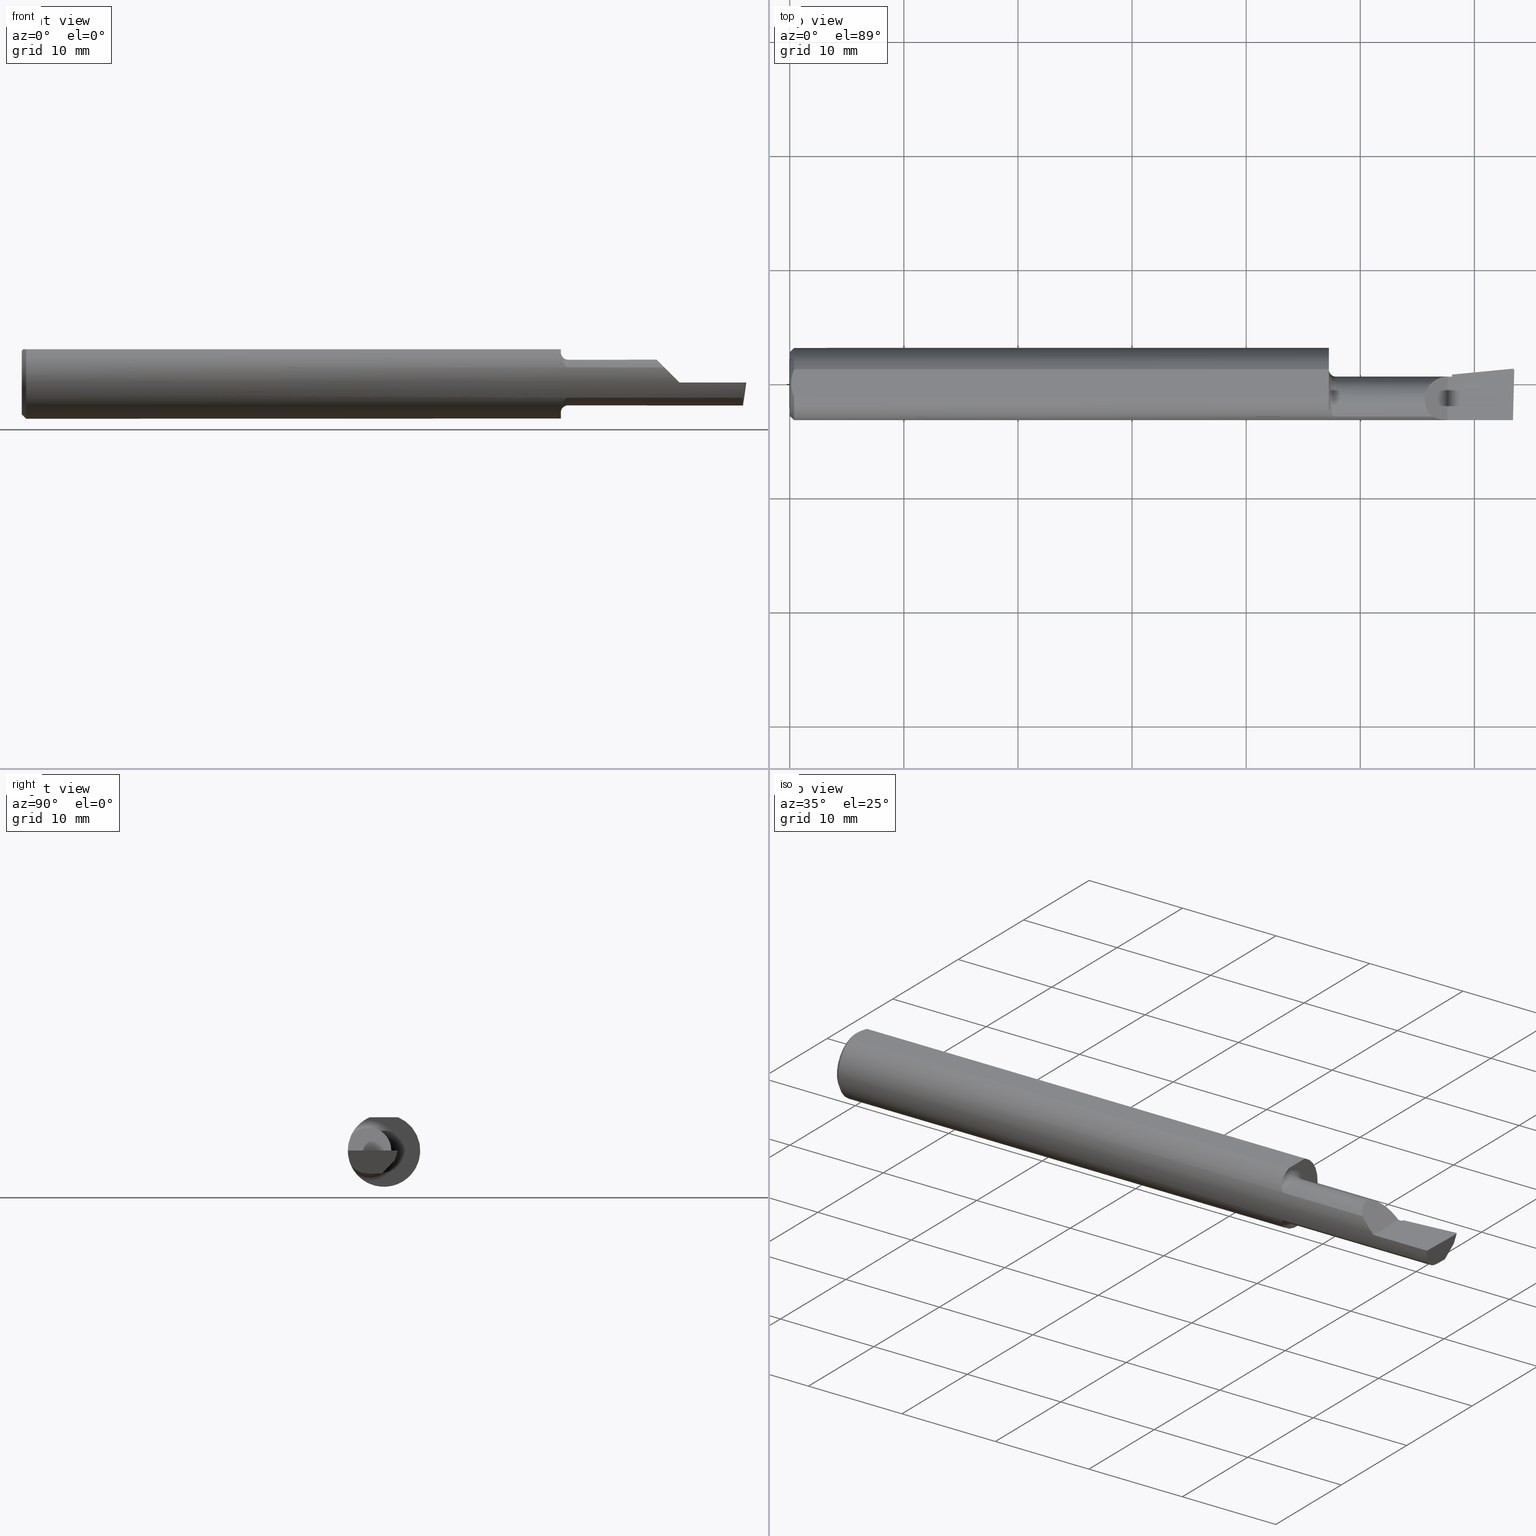
[diagram: canonical four-view strip — front | top / right | iso, engineering-drawing reading convention]
A machine part, canonical four-view strip (front | top / right | iso — engineering-drawing reading convention). The complete STEP part file that produces these views, byte-faithful:
ISO-10303-21;
HEADER;
FILE_DESCRIPTION (( 'STEP AP214' ),
    '1' );
FILE_NAME ('B180600R.STEP',
    '2020-05-08T22:47:59',
    ( '' ),
    ( '' ),
    'SwSTEP 2.0',
    'SolidWorks 2018',
    '' );
FILE_SCHEMA (( 'AUTOMOTIVE_DESIGN' ));
ENDSEC;

DATA;
#1 = ADVANCED_FACE ( 'NONE', ( #356 ), #80, .T. ) ;
#2 = CARTESIAN_POINT ( 'NONE',  ( 2.492906680581910006, 0.05246699102467097114, -6.532122848641467145E-17 ) ) ;
#3 = LINE ( 'NONE', #204, #577 ) ;
#4 = ORIENTED_EDGE ( 'NONE', *, *, #320, .T. ) ;
#5 =( BOUNDED_CURVE ( )  B_SPLINE_CURVE ( 3, ( #512, #471, #457, #516 ),
 .UNSPECIFIED., .F., .T. ) 
 B_SPLINE_CURVE_WITH_KNOTS ( ( 4, 4 ),
 ( 3.511516179717970587, 3.604018710826568661 ),
 .UNSPECIFIED. ) 
 CURVE ( )  GEOMETRIC_REPRESENTATION_ITEM ( )  RATIONAL_B_SPLINE_CURVE ( ( 1.000000000000000000, 0.9992870672494007511, 0.9992870672494007511, 1.000000000000000000 ) ) 
 REPRESENTATION_ITEM ( '' )  );
#6 = FACE_OUTER_BOUND ( 'NONE', #259, .T. ) ;
#7 = FILL_AREA_STYLE ('',( #71 ) ) ;
#8 = AXIS2_PLACEMENT_3D ( 'NONE', #100, #424, #656 ) ;
#9 = CARTESIAN_POINT ( 'NONE',  ( 1.859999999999999876, 0.0000000000000000000, 0.0000000000000000000 ) ) ;
#10 = VECTOR ( 'NONE', #189, 39.37007874015748143 ) ;
#11 = ORIENTED_EDGE ( 'NONE', *, *, #395, .T. ) ;
#12 = ORIENTED_EDGE ( 'NONE', *, *, #448, .F. ) ;
#13 = DIRECTION ( 'NONE',  ( -0.02617694830793583505, -0.9996573249755555945, 8.535148296544268902E-17 ) ) ;
#14 = DIRECTION ( 'NONE',  ( 0.0000000000000000000, -4.882484975808304553E-17, -1.000000000000000000 ) ) ;
#15 = CARTESIAN_POINT ( 'NONE',  ( 0.01499999999999999424, 0.04895916665957457392, 0.1148500000000000076 ) ) ;
#16 = DIRECTION ( 'NONE',  ( 0.0000000000000000000, 0.6963153109074923242, 0.7177360153954949196 ) ) ;
#17 = VERTEX_POINT ( 'NONE', #156 ) ;
#18 = ORIENTED_EDGE ( 'NONE', *, *, #395, .F. ) ;
#19 = PRESENTATION_LAYER_ASSIGNMENT (  '', '', ( #30 ) ) ;
#20 = ORIENTED_EDGE ( 'NONE', *, *, #183, .T. ) ;
#21 = DIRECTION ( 'NONE',  ( -0.06894566448119622548, 0.7160281025913036723, -0.6946583704589932573 ) ) ;
#22 = CARTESIAN_POINT ( 'NONE',  ( 2.487472449114545014, -0.05399999999999999939, -0.07914999999999994262 ) ) ;
#23 = FILL_AREA_STYLE ('',( #50 ) ) ;
#24 = FACE_OUTER_BOUND ( 'NONE', #376, .T. ) ;
#25 = VERTEX_POINT ( 'NONE', #128 ) ;
#26 = CARTESIAN_POINT ( 'NONE',  ( 1.885000000000000009, -0.1133222222222224629, 0.05239843939104716491 ) ) ;
#27 = AXIS2_PLACEMENT_3D ( 'NONE', #225, #21, #16 ) ;
#28 = PLANE ( 'NONE',  #49 ) ;
#29 = CARTESIAN_POINT ( 'NONE',  ( 2.285000000000000142, 0.005014495618354278261, -0.04604586163080774674 ) ) ;
#30 = STYLED_ITEM ( 'NONE', ( #61 ), #236 ) ;
#31 = DIRECTION ( 'NONE',  ( -0.7071067811865516806, 0.0000000000000000000, 0.7071067811865431318 ) ) ;
#32 = EDGE_LOOP ( 'NONE', ( #346, #482, #592, #566, #611, #544, #168, #12, #285, #99 ) ) ;
#33 = VERTEX_POINT ( 'NONE', #329 ) ;
#34 = CARTESIAN_POINT ( 'NONE',  ( 1.860418395875213626, -0.08085314529530901462, 0.09533153891603386720 ) ) ;
#35 = ORIENTED_EDGE ( 'NONE', *, *, #286, .F. ) ;
#36 = AXIS2_PLACEMENT_3D ( 'NONE', #131, #651, #248 ) ;
#37 = CARTESIAN_POINT ( 'NONE',  ( 2.493107549887203067, -0.1248500000000000165, -0.01816670945505176327 ) ) ;
#38 =( LENGTH_UNIT ( ) NAMED_UNIT ( * ) SI_UNIT ( $, .METRE. ) );
#39 =( GEOMETRIC_REPRESENTATION_CONTEXT ( 3 ) GLOBAL_UNCERTAINTY_ASSIGNED_CONTEXT ( ( #310 ) ) GLOBAL_UNIT_ASSIGNED_CONTEXT ( ( #82, #406, #146 ) ) REPRESENTATION_CONTEXT ( 'NONE', 'WORKASPACE' ) );
#40 = LINE ( 'NONE', #94, #398 ) ;
#41 = EDGE_LOOP ( 'NONE', ( #167, #536, #605, #11 ) ) ;
#42 = LINE ( 'NONE', #260, #44 ) ;
#43 = CARTESIAN_POINT ( 'NONE',  ( 1.862066153268988611, -0.08982957272875712051, 0.08692514756739018467 ) ) ;
#44 = VECTOR ( 'NONE', #84, 39.37007874015748143 ) ;
#45 = CARTESIAN_POINT ( 'NONE',  ( 1.883393805215129557, -0.1133222222232598414, 0.05239843938880368174 ) ) ;
#46 = CONICAL_SURFACE ( 'NONE', #36, 0.1248500000000000026, 0.7853981633974602694 ) ;
#47 = ADVANCED_FACE ( 'NONE', ( #162 ), #28, .F. ) ;
#48 = B_SPLINE_CURVE_WITH_KNOTS ( 'NONE', 3,
 ( #237, #613, #345, #342, #307, #649 ),
 .UNSPECIFIED., .F., .F.,
 ( 4, 2, 4 ),
 ( 0.002298356357403497086, 0.002932796277434359007, 0.003567236197465221362 ),
 .UNSPECIFIED. ) ;
#49 = AXIS2_PLACEMENT_3D ( 'NONE', #86, #89, #137 ) ;
#50 = FILL_AREA_STYLE_COLOUR ( '', #118 ) ;
#51 = VERTEX_POINT ( 'NONE', #26 ) ;
#52 = ORIENTED_EDGE ( 'NONE', *, *, #549, .F. ) ;
#53 = ORIENTED_EDGE ( 'NONE', *, *, #193, .F. ) ;
#54 = CIRCLE ( 'NONE', #434, 0.1248500000000000026 ) ;
#55 = AXIS2_PLACEMENT_3D ( 'NONE', #491, #495, #525 ) ;
#56 = FACE_OUTER_BOUND ( 'NONE', #251, .T. ) ;
#57 = VERTEX_POINT ( 'NONE', #252 ) ;
#58 = CARTESIAN_POINT ( 'NONE',  ( 2.486868858499483803, -0.07705019563525709880, -0.07914999999999998426 ) ) ;
#59 = ORIENTED_EDGE ( 'NONE', *, *, #526, .F. ) ;
#60 = LINE ( 'NONE', #282, #142 ) ;
#61 = PRESENTATION_STYLE_ASSIGNMENT (( #64 ) ) ;
#62 = EDGE_CURVE ( 'NONE', #417, #17, #524, .T. ) ;
#63 = ADVANCED_FACE ( 'NONE', ( #6 ), #46, .T. ) ;
#64 = SURFACE_STYLE_USAGE ( .BOTH. , #169 ) ;
#65 = DIRECTION ( 'NONE',  ( -0.1240019227990225709, -0.3022330132596685592, -0.9451342385281183978 ) ) ;
#66 = ORIENTED_EDGE ( 'NONE', *, *, #541, .T. ) ;
#67 =( GEOMETRIC_REPRESENTATION_CONTEXT ( 3 ) GLOBAL_UNCERTAINTY_ASSIGNED_CONTEXT ( ( #213 ) ) GLOBAL_UNIT_ASSIGNED_CONTEXT ( ( #385, #587, #537 ) ) REPRESENTATION_CONTEXT ( 'NONE', 'WORKASPACE' ) );
#68 = CARTESIAN_POINT ( 'NONE',  ( 0.01499999999999999424, 0.0000000000000000000, 0.0000000000000000000 ) ) ;
#69 = EDGE_LOOP ( 'NONE', ( #149, #492, #127, #59, #201, #53 ) ) ;
#70 = ORIENTED_EDGE ( 'NONE', *, *, #353, .T. ) ;
#71 = FILL_AREA_STYLE_COLOUR ( '', #152 ) ;
#72 = ORIENTED_EDGE ( 'NONE', *, *, #487, .F. ) ;
#73 = CARTESIAN_POINT ( 'NONE',  ( 2.499910038027521875, 0.04971449087509932641, -5.401409214261199455E-17 ) ) ;
#74 = EDGE_CURVE ( 'NONE', #172, #258, #538, .T. ) ;
#75 = CARTESIAN_POINT ( 'NONE',  ( 2.477503890861344260, 0.007285921144409711510, -0.1200395610706565946 ) ) ;
#76 =( BOUNDED_CURVE ( )  B_SPLINE_CURVE ( 3, ( #272, #430, #334, #190 ),
 .UNSPECIFIED., .F., .F. ) 
 B_SPLINE_CURVE_WITH_KNOTS ( ( 4, 4 ),
 ( 4.712388980384688786, 5.145493999647444028 ),
 .UNSPECIFIED. ) 
 CURVE ( )  GEOMETRIC_REPRESENTATION_ITEM ( )  RATIONAL_B_SPLINE_CURVE ( ( 1.000000000000000000, 0.9844293286710339430, 0.9844293286710339430, 1.000000000000000000 ) ) 
 REPRESENTATION_ITEM ( '' )  );
#77 = CARTESIAN_POINT ( 'NONE',  ( 2.285000000000000142, 0.005014495618354278261, -0.04604586163080774674 ) ) ;
#78 = ORIENTED_EDGE ( 'NONE', *, *, #487, .T. ) ;
#79 = ADVANCED_FACE ( 'NONE', ( #503 ), #296, .T. ) ;
#80 = PLANE ( 'NONE',  #27 ) ;
#81 = FACE_OUTER_BOUND ( 'NONE', #239, .T. ) ;
#82 =( CONVERSION_BASED_UNIT ( 'INCH', #359 ) LENGTH_UNIT ( ) NAMED_UNIT ( #185 ) );
#83 = CARTESIAN_POINT ( 'NONE',  ( 1.883397973893800703, -0.1133222222222223935, -0.05239843939104716491 ) ) ;
#84 = DIRECTION ( 'NONE',  ( -2.377784481325426399E-18, -0.6963153109074924352, -0.7177360153954949196 ) ) ;
#85 = ADVANCED_FACE ( 'NONE', ( #453 ), #509, .T. ) ;
#86 = CARTESIAN_POINT ( 'NONE',  ( 0.0000000000000000000, 0.0000000000000000000, 0.0000000000000000000 ) ) ;
#87 = LINE ( 'NONE', #627, #631 ) ;
#88 = FACE_OUTER_BOUND ( 'NONE', #460, .T. ) ;
#89 = DIRECTION ( 'NONE',  ( 1.000000000000000000, 0.0000000000000000000, 0.0000000000000000000 ) ) ;
#90 = CARTESIAN_POINT ( 'NONE',  ( 0.0000000000000000000, 0.0000000000000000000, 0.0000000000000000000 ) ) ;
#91 = EDGE_CURVE ( 'NONE', #112, #522, #219, .T. ) ;
#92 = EDGE_LOOP ( 'NONE', ( #265, #411, #279, #623 ) ) ;
#93 = FACE_OUTER_BOUND ( 'NONE', #301, .T. ) ;
#94 = CARTESIAN_POINT ( 'NONE',  ( 2.487481033401094166, -0.05367217932251298895, -0.07914999999999994262 ) ) ;
#95 = CARTESIAN_POINT ( 'NONE',  ( 2.285000000000000142, 0.03244785463753242782, 9.838921289681448013E-16 ) ) ;
#96 = AXIS2_PLACEMENT_3D ( 'NONE', #327, #548, #365 ) ;
#97 = ADVANCED_FACE ( 'NONE', ( #81 ), #298, .T. ) ;
#98 = VERTEX_POINT ( 'NONE', #289 ) ;
#99 = ORIENTED_EDGE ( 'NONE', *, *, #667, .F. ) ;
#100 = CARTESIAN_POINT ( 'NONE',  ( 1.859999999999999876, 0.0000000000000000000, 0.0000000000000000000 ) ) ;
#101 = ORIENTED_EDGE ( 'NONE', *, *, #159, .T. ) ;
#102 = CIRCLE ( 'NONE', #8, 0.1248500000000000026 ) ;
#103 = EDGE_CURVE ( 'NONE', #208, #172, #527, .T. ) ;
#104 = VECTOR ( 'NONE', #408, 39.37007874015748143 ) ;
#105 = ORIENTED_EDGE ( 'NONE', *, *, #74, .F. ) ;
#106 = DIRECTION ( 'NONE',  ( -2.377784481325426399E-18, -0.6963153109074924352, -0.7177360153954949196 ) ) ;
#107 = CARTESIAN_POINT ( 'NONE',  ( 2.285000000000000142, 0.03244785463752900695, 0.0000000000000000000 ) ) ;
#108 = ORIENTED_EDGE ( 'NONE', *, *, #470, .F. ) ;
#109 = CARTESIAN_POINT ( 'NONE',  ( 1.881855009147951785, -0.1130869929873388885, 0.05291095013438952555 ) ) ;
#110 = EDGE_CURVE ( 'NONE', #514, #284, #570, .T. ) ;
#111 = CARTESIAN_POINT ( 'NONE',  ( 2.285000000000000142, -0.05399999999999999939, 0.0000000000000000000 ) ) ;
#112 = VERTEX_POINT ( 'NONE', #340 ) ;
#113 = ADVANCED_FACE ( 'NONE', ( #262 ), #391, .F. ) ;
#114 = LINE ( 'NONE', #590, #362 ) ;
#115 = EDGE_LOOP ( 'NONE', ( #609, #441, #20, #461 ) ) ;
#116 = ORIENTED_EDGE ( 'NONE', *, *, #588, .T. ) ;
#117 = DIRECTION ( 'NONE',  ( -1.000000000000000000, 3.414809992080329023E-18, -0.0000000000000000000 ) ) ;
#118 = COLOUR_RGB ( '',0.7529411764705882248, 0.7529411764705882248, 0.7529411764705882248 ) ;
#119 = DIRECTION ( 'NONE',  ( -0.9922060308645372917, 0.02598182930475530575, 0.1218693434052200292 ) ) ;
#120 = CIRCLE ( 'NONE', #594, 0.07914999999999995650 ) ;
#121 = ADVANCED_FACE ( 'NONE', ( #24 ), #462, .F. ) ;
#122 =( NAMED_UNIT ( * ) SI_UNIT ( $, .STERADIAN. ) SOLID_ANGLE_UNIT ( ) );
#123 = LINE ( 'NONE', #77, #10 ) ;
#124 = DIRECTION ( 'NONE',  ( 4.858719700838190352E-34, 8.537024980200821325E-17, 1.000000000000000000 ) ) ;
#125 = ORIENTED_EDGE ( 'NONE', *, *, #353, .F. ) ;
#126 = ORIENTED_EDGE ( 'NONE', *, *, #62, .F. ) ;
#127 = ORIENTED_EDGE ( 'NONE', *, *, #600, .F. ) ;
#128 = CARTESIAN_POINT ( 'NONE',  ( 2.285000000000000142, -0.01935479767416507443, -0.07116482597324295944 ) ) ;
#129 = CARTESIAN_POINT ( 'NONE',  ( 1.859999999999999876, -0.05399999999999999939, 0.0000000000000000000 ) ) ;
#130 = PRODUCT_DEFINITION ( 'UNKNOWN', '', #498, #542 ) ;
#131 = CARTESIAN_POINT ( 'NONE',  ( 0.01499999999999999424, 0.0000000000000000000, 0.0000000000000000000 ) ) ;
#132 = CARTESIAN_POINT ( 'NONE',  ( 0.01499999999999999424, 0.0000000000000000000, -0.1248500000000000026 ) ) ;
#133 = CARTESIAN_POINT ( 'NONE',  ( 4.111069666048746882E-31, -0.1248499999999999888, 9.802154982235641300E-16 ) ) ;
#134 = CARTESIAN_POINT ( 'NONE',  ( 2.485278273515959313, -0.09572943287973845194, -0.08811753218725941472 ) ) ;
#135 = CIRCLE ( 'NONE', #55, 0.07914999999999992875 ) ;
#136 =( BOUNDED_CURVE ( )  B_SPLINE_CURVE ( 3, ( #276, #373, #622, #619 ),
 .UNSPECIFIED., .F., .F. ) 
 B_SPLINE_CURVE_WITH_KNOTS ( ( 4, 4 ),
 ( 3.156599629463096690, 4.715023529952357961 ),
 .UNSPECIFIED. ) 
 CURVE ( )  GEOMETRIC_REPRESENTATION_ITEM ( )  RATIONAL_B_SPLINE_CURVE ( ( 1.000000000000000000, 0.8076450242550402558, 0.8076450242550402558, 1.000000000000000000 ) ) 
 REPRESENTATION_ITEM ( '' )  );
#137 = DIRECTION ( 'NONE',  ( 0.0000000000000000000, 0.0000000000000000000, -1.000000000000000000 ) ) ;
#138 = VERTEX_POINT ( 'NONE', #465 ) ;
#139 = VERTEX_POINT ( 'NONE', #657 ) ;
#140 = DIRECTION ( 'NONE',  ( -3.414809992080329408E-18, -1.000000000000000000, 0.0000000000000000000 ) ) ;
#141 = ORIENTED_EDGE ( 'NONE', *, *, #600, .T. ) ;
#142 = VECTOR ( 'NONE', #210, 39.37007874015748143 ) ;
#143 = ORIENTED_EDGE ( 'NONE', *, *, #628, .F. ) ;
#144 = PLANE ( 'NONE',  #351 ) ;
#145 = LINE ( 'NONE', #154, #194 ) ;
#146 =( NAMED_UNIT ( * ) SI_UNIT ( $, .STERADIAN. ) SOLID_ANGLE_UNIT ( ) );
#147 = ORIENTED_EDGE ( 'NONE', *, *, #91, .T. ) ;
#148 = EDGE_CURVE ( 'NONE', #643, #440, #5, .T. ) ;
#149 = ORIENTED_EDGE ( 'NONE', *, *, #222, .T. ) ;
#150 = CARTESIAN_POINT ( 'NONE',  ( 2.489495472034650714, 0.04415276641570021338, -0.02600000000000000228 ) ) ;
#151 = APPLICATION_CONTEXT ( 'automotive_design' ) ;
#152 = COLOUR_RGB ( '',0.7529411764705882248, 0.7529411764705882248, 0.7529411764705882248 ) ;
#153 = CARTESIAN_POINT ( 'NONE',  ( 2.702822108735689715E-19, 0.02514999999999995364, 9.802154982235641300E-16 ) ) ;
#154 = CARTESIAN_POINT ( 'NONE',  ( 2.489630139748174376, 0.04448099542964071423, -0.02497357182854489932 ) ) ;
#155 = AXIS2_PLACEMENT_3D ( 'NONE', #111, #599, #539 ) ;
#156 = CARTESIAN_POINT ( 'NONE',  ( 2.284999999999999698, 0.02446209205278014609, -0.02600000000000000575 ) ) ;
#157 = DIRECTION ( 'NONE',  ( -1.000000000000000000, 3.414809992080329023E-18, -0.0000000000000000000 ) ) ;
#158 = DIRECTION ( 'NONE',  ( 0.9953961983671787417, 0.09584575252022459191, -4.174738232790345673E-16 ) ) ;
#159 = EDGE_CURVE ( 'NONE', #514, #271, #630, .T. ) ;
#160 = ORIENTED_EDGE ( 'NONE', *, *, #654, .T. ) ;
#161 = LINE ( 'NONE', #132, #404 ) ;
#162 = FACE_OUTER_BOUND ( 'NONE', #565, .T. ) ;
#163 = CARTESIAN_POINT ( 'NONE',  ( 2.489204846642126157, -0.1133222222222222686, -0.05239843939104745635 ) ) ;
#164 = LENGTH_MEASURE_WITH_UNIT ( LENGTH_MEASURE( 0.02539999999999999897 ), #38 );
#165 = MECHANICAL_DESIGN_GEOMETRIC_PRESENTATION_REPRESENTATION (  '', ( #228 ), #176 ) ;
#166 = CYLINDRICAL_SURFACE ( 'NONE', #546, 0.1248500000000000026 ) ;
#167 = ORIENTED_EDGE ( 'NONE', *, *, #407, .F. ) ;
#168 = ORIENTED_EDGE ( 'NONE', *, *, #412, .T. ) ;
#169 = SURFACE_SIDE_STYLE ('',( #218 ) ) ;
#170 = EDGE_CURVE ( 'NONE', #374, #502, #324, .T. ) ;
#171 = DIRECTION ( 'NONE',  ( 0.0000000000000000000, -1.000000000000000000, 0.0000000000000000000 ) ) ;
#172 = VERTEX_POINT ( 'NONE', #598 ) ;
#173 = ORIENTED_EDGE ( 'NONE', *, *, #421, .T. ) ;
#174 = B_SPLINE_CURVE_WITH_KNOTS ( 'NONE', 3,
 ( #339, #305, #635, #629, #573, #485 ),
 .UNSPECIFIED., .F., .F.,
 ( 4, 2, 4 ),
 ( 0.001029394377391489035, 0.001663875367397493060, 0.002298356357403497086 ),
 .UNSPECIFIED. ) ;
#175 = DIRECTION ( 'NONE',  ( 1.000000000000000000, -3.414809992080329023E-18, 0.0000000000000000000 ) ) ;
#176 =( GEOMETRIC_REPRESENTATION_CONTEXT ( 3 ) GLOBAL_UNCERTAINTY_ASSIGNED_CONTEXT ( ( #322 ) ) GLOBAL_UNIT_ASSIGNED_CONTEXT ( ( #223, #318, #122 ) ) REPRESENTATION_CONTEXT ( 'NONE', 'WORKASPACE' ) );
#177 = PRESENTATION_STYLE_ASSIGNMENT (( #309 ) ) ;
#178 = DIRECTION ( 'NONE',  ( -1.000000000000000000, -0.0000000000000000000, -0.0000000000000000000 ) ) ;
#179 = DIRECTION ( 'NONE',  ( 0.0000000000000000000, -1.000000000000000000, 0.0000000000000000000 ) ) ;
#180 = VECTOR ( 'NONE', #235, 39.37007874015748854 ) ;
#181 = CARTESIAN_POINT ( 'NONE',  ( 1.885000000000000009, -0.1133222222222224906, -0.05239843939104713716 ) ) ;
#182 = DIRECTION ( 'NONE',  ( -0.1240019227990225431, -0.3022330132596686703, -0.9451342385281182867 ) ) ;
#183 = EDGE_CURVE ( 'NONE', #439, #591, #243, .T. ) ;
#184 = PLANE ( 'NONE',  #96 ) ;
#185 = DIMENSIONAL_EXPONENTS ( 1.000000000000000000, 0.0000000000000000000, 0.0000000000000000000, 0.0000000000000000000, 0.0000000000000000000, 0.0000000000000000000, 0.0000000000000000000 ) ;
#186 = LINE ( 'NONE', #625, #433 ) ;
#187 = APPLICATION_CONTEXT ( 'automotive_design' ) ;
#188 = LINE ( 'NONE', #639, #400 ) ;
#189 = DIRECTION ( 'NONE',  ( -2.377784481325426399E-18, -0.6963153109074924352, -0.7177360153954949196 ) ) ;
#190 = CARTESIAN_POINT ( 'NONE',  ( 2.217601560608951861, -0.1133222222222222964, 0.05239843939104740084 ) ) ;
#191 = ORIENTED_EDGE ( 'NONE', *, *, #412, .F. ) ;
#192 = VERTEX_POINT ( 'NONE', #638 ) ;
#193 = EDGE_CURVE ( 'NONE', #98, #288, #40, .T. ) ;
#194 = VECTOR ( 'NONE', #182, 39.37007874015748143 ) ;
#195 = PRODUCT ( 'B180600R', 'B180600R', '', ( #496 ) ) ;
#196 = DIRECTION ( 'NONE',  ( -1.000000000000000000, 3.414809992080329023E-18, -0.0000000000000000000 ) ) ;
#197 = FACE_OUTER_BOUND ( 'NONE', #579, .T. ) ;
#198 = CIRCLE ( 'NONE', #575, 0.07914999999999995650 ) ;
#199 = CARTESIAN_POINT ( 'NONE',  ( 0.0000000000000000000, 0.0000000000000000000, -0.1098499999999996424 ) ) ;
#200 = DIRECTION ( 'NONE',  ( 0.0000000000000000000, 0.0000000000000000000, 1.000000000000000000 ) ) ;
#201 = ORIENTED_EDGE ( 'NONE', *, *, #381, .T. ) ;
#202 = DIRECTION ( 'NONE',  ( -3.414809992080329023E-18, -1.000000000000000000, 0.0000000000000000000 ) ) ;
#203 = DIRECTION ( 'NONE',  ( -0.1240019227990225847, -0.3022330132596686147, -0.9451342385281185088 ) ) ;
#204 = CARTESIAN_POINT ( 'NONE',  ( 2.285000000000000142, 0.02898381944558133666, -0.01127818590082938985 ) ) ;
#205 = DIRECTION ( 'NONE',  ( 0.1053106618242764664, 0.6976485211320145874, 0.7086580314005096470 ) ) ;
#206 = ORIENTED_EDGE ( 'NONE', *, *, #511, .T. ) ;
#207 = ORIENTED_EDGE ( 'NONE', *, *, #578, .T. ) ;
#208 = VERTEX_POINT ( 'NONE', #15 ) ;
#209 = CARTESIAN_POINT ( 'NONE',  ( 1.878018389903473029, -0.1118940578004067182, -0.05539504279879990667 ) ) ;
#210 = DIRECTION ( 'NONE',  ( -1.000000000000000000, 5.691349986800549142E-18, -0.0000000000000000000 ) ) ;
#211 = MECHANICAL_DESIGN_GEOMETRIC_PRESENTATION_REPRESENTATION (  '', ( #30 ), #39 ) ;
#212 = SURFACE_SIDE_STYLE ('',( #585 ) ) ;
#213 = UNCERTAINTY_MEASURE_WITH_UNIT (LENGTH_MEASURE( 1.000000000000000082E-05 ), #385, 'distance_accuracy_value', 'NONE');
#214 = ADVANCED_FACE ( 'NONE', ( #197 ), #144, .F. ) ;
#215 = CARTESIAN_POINT ( 'NONE',  ( 1.885000000000000009, -0.1133222222222224629, 0.05239843939104716491 ) ) ;
#216 = ORIENTED_EDGE ( 'NONE', *, *, #110, .F. ) ;
#217 = EDGE_LOOP ( 'NONE', ( #606, #648, #475, #636 ) ) ;
#218 = SURFACE_STYLE_FILL_AREA ( #23 ) ;
#219 = LINE ( 'NONE', #133, #553 ) ;
#220 = DIRECTION ( 'NONE',  ( 0.0000000000000000000, 1.000000000000000000, -8.537024980200821325E-17 ) ) ;
#221 = CYLINDRICAL_SURFACE ( 'NONE', #244, 0.006500000000000000569 ) ;
#222 = EDGE_CURVE ( 'NONE', #98, #374, #589, .T. ) ;
#223 =( CONVERSION_BASED_UNIT ( 'INCH', #164 ) LENGTH_UNIT ( ) NAMED_UNIT ( #659 ) );
#224 = LINE ( 'NONE', #556, #632 ) ;
#225 = CARTESIAN_POINT ( 'NONE',  ( 2.510715839651727954, 0.04619605541595013520, -0.02600000000000000228 ) ) ;
#226 = VERTEX_POINT ( 'NONE', #240 ) ;
#227 = ORIENTED_EDGE ( 'NONE', *, *, #299, .T. ) ;
#228 = STYLED_ITEM ( 'NONE', ( #177 ), #444 ) ;
#229 = VECTOR ( 'NONE', #427, 39.37007874015748143 ) ;
#230 = EDGE_CURVE ( 'NONE', #643, #664, #224, .T. ) ;
#231 = CARTESIAN_POINT ( 'NONE',  ( 1.859999999999999876, 0.04895916665957456004, 0.1148500000000000076 ) ) ;
#232 = CARTESIAN_POINT ( 'NONE',  ( 2.270000000000000018, -0.1248500000000000165, 2.816687638038912303E-17 ) ) ;
#233 = CARTESIAN_POINT ( 'NONE',  ( 2.285000000000000142, -0.05399999999999999939, 0.0000000000000000000 ) ) ;
#234 = ORIENTED_EDGE ( 'NONE', *, *, #357, .T. ) ;
#235 = DIRECTION ( 'NONE',  ( -0.9953961983671800740, -0.09584575252021027003, 1.093478026937437355E-17 ) ) ;
#236 = ADVANCED_BREP_SHAPE_REPRESENTATION ( 'B180600R', ( #444, #581 ), #67 ) ;
#237 = CARTESIAN_POINT ( 'NONE',  ( 0.005000000000000237761, 1.454187638523587873E-17, 0.1148500000000000076 ) ) ;
#238 =( LENGTH_UNIT ( ) NAMED_UNIT ( * ) SI_UNIT ( $, .METRE. ) );
#239 = EDGE_LOOP ( 'NONE', ( #366, #206, #513, #191 ) ) ;
#240 = CARTESIAN_POINT ( 'NONE',  ( 1.859999999999999876, -0.07089166666666681105, 0.1027710761704002246 ) ) ;
#241 = AXIS2_PLACEMENT_3D ( 'NONE', #68, #494, #449 ) ;
#242 = CARTESIAN_POINT ( 'NONE',  ( 1.874878942730255460, -0.1103076286869490719, -0.05852540734030589609 ) ) ;
#243 = B_SPLINE_CURVE_WITH_KNOTS ( 'NONE', 3,
 ( #601, #83, #610, #532, #209, #242, #518, #607, #562, #504, #634, #640, #499, #655 ),
 .UNSPECIFIED., .F., .F.,
 ( 4, 2, 2, 2, 2, 2, 4 ),
 ( 1.961860195742902937E-07, 0.0001199556417433922313, 0.0002397150974672101564, 0.0004792340089148602639, 0.0009582718318101516967, 0.001437309654705443184, 0.001916347477600734888 ),
 .UNSPECIFIED. ) ;
#244 = AXIS2_PLACEMENT_3D ( 'NONE', #75, #572, #268 ) ;
#245 = LINE ( 'NONE', #661, #550 ) ;
#246 = ORIENTED_EDGE ( 'NONE', *, *, #62, .T. ) ;
#247 = VECTOR ( 'NONE', #375, 39.37007874015748143 ) ;
#248 = DIRECTION ( 'NONE',  ( 0.0000000000000000000, 0.0000000000000000000, -1.000000000000000000 ) ) ;
#249 = DIRECTION ( 'NONE',  ( -1.000000000000000000, 3.414809992080329023E-18, -0.0000000000000000000 ) ) ;
#250 =( BOUNDED_CURVE ( )  B_SPLINE_CURVE ( 3, ( #586, #593, #576, #529 ),
 .UNSPECIFIED., .F., .F. ) 
 B_SPLINE_CURVE_WITH_KNOTS ( ( 4, 4 ),
 ( 5.435892245814750723, 7.853981633974484566 ),
 .UNSPECIFIED. ) 
 CURVE ( )  GEOMETRIC_REPRESENTATION_ITEM ( )  RATIONAL_B_SPLINE_CURVE ( ( 1.000000000000000000, 0.5692753596694914986, 0.5692753596694914986, 1.000000000000000000 ) ) 
 REPRESENTATION_ITEM ( '' )  );
#251 = EDGE_LOOP ( 'NONE', ( #347, #663, #642, #72, #108 ) ) ;
#252 = CARTESIAN_POINT ( 'NONE',  ( 2.285000000000000142, 0.01818157456899031216, -0.03247372465149760828 ) ) ;
#253 = CARTESIAN_POINT ( 'NONE',  ( 1.878003366130774898, -0.1118869025553489854, 0.05540929543234544841 ) ) ;
#254 = AXIS2_PLACEMENT_3D ( 'NONE', #134, #119, #372 ) ;
#255 = EDGE_CURVE ( 'NONE', #57, #25, #123, .T. ) ;
#256 = VECTOR ( 'NONE', #106, 39.37007874015748143 ) ;
#257 = ORIENTED_EDGE ( 'NONE', *, *, #183, .F. ) ;
#258 = VERTEX_POINT ( 'NONE', #647 ) ;
#259 = EDGE_LOOP ( 'NONE', ( #216, #35, #116, #468, #78 ) ) ;
#260 = CARTESIAN_POINT ( 'NONE',  ( 2.285000000000000142, 0.005014495618354278261, -0.04604586163080774674 ) ) ;
#261 = PRESENTATION_LAYER_ASSIGNMENT (  '', '', ( #228 ) ) ;
#262 = FACE_OUTER_BOUND ( 'NONE', #410, .T. ) ;
#263 = CARTESIAN_POINT ( 'NONE',  ( 2.510715839651727954, 0.04619605541595013520, -0.02600000000000000228 ) ) ;
#264 = ORIENTED_EDGE ( 'NONE', *, *, #103, .T. ) ;
#265 = ORIENTED_EDGE ( 'NONE', *, *, #230, .F. ) ;
#266 = CARTESIAN_POINT ( 'NONE',  ( 2.285000000000000142, -0.05399999999999999939, -0.07914999999999994262 ) ) ;
#267 = EDGE_CURVE ( 'NONE', #192, #390, #380, .T. ) ;
#268 = DIRECTION ( 'NONE',  ( 0.0000000000000000000, 0.9524855432518746223, -0.3045837978228342902 ) ) ;
#269 = ORIENTED_EDGE ( 'NONE', *, *, #654, .F. ) ;
#270 = ORIENTED_EDGE ( 'NONE', *, *, #148, .T. ) ;
#271 = VERTEX_POINT ( 'NONE', #199 ) ;
#272 = CARTESIAN_POINT ( 'NONE',  ( 2.270000000000000018, -0.1248500000000000165, 2.816687638038912303E-17 ) ) ;
#273 = DIRECTION ( 'NONE',  ( 0.0000000000000000000, 0.0000000000000000000, -1.000000000000000000 ) ) ;
#274 = DIRECTION ( 'NONE',  ( 0.0000000000000000000, 0.0000000000000000000, 1.000000000000000000 ) ) ;
#275 =( BOUNDED_CURVE ( )  B_SPLINE_CURVE ( 3, ( #163, #547, #58, #463 ),
 .UNSPECIFIED., .F., .F. ) 
 B_SPLINE_CURVE_WITH_KNOTS ( ( 4, 4 ),
 ( 5.645941690095283683, 6.493234751460117415 ),
 .UNSPECIFIED. ) 
 CURVE ( )  GEOMETRIC_REPRESENTATION_ITEM ( )  RATIONAL_B_SPLINE_CURVE ( ( 1.000000000000000000, 0.9410639745696125491, 0.9410639745696125491, 1.000000000000000000 ) ) 
 REPRESENTATION_ITEM ( '' )  );
#276 = CARTESIAN_POINT ( 'NONE',  ( 2.490095884891770694, 0.04416786174452198843, -0.02604403198038588579 ) ) ;
#277 = AXIS2_PLACEMENT_3D ( 'NONE', #363, #383, #387 ) ;
#278 = ORIENTED_EDGE ( 'NONE', *, *, #103, .F. ) ;
#279 = ORIENTED_EDGE ( 'NONE', *, *, #170, .F. ) ;
#280 = ORIENTED_EDGE ( 'NONE', *, *, #308, .T. ) ;
#281 = DIRECTION ( 'NONE',  ( 1.000000000000000000, -3.414809992080329023E-18, 0.0000000000000000000 ) ) ;
#282 = CARTESIAN_POINT ( 'NONE',  ( 2.500000000000000000, -0.05399999999999999939, -0.07914999999999994262 ) ) ;
#283 = AXIS2_PLACEMENT_3D ( 'NONE', #445, #401, #31 ) ;
#284 = VERTEX_POINT ( 'NONE', #437 ) ;
#285 = ORIENTED_EDGE ( 'NONE', *, *, #549, .T. ) ;
#286 = EDGE_CURVE ( 'NONE', #271, #514, #488, .T. ) ;
#287 = FACE_OUTER_BOUND ( 'NONE', #316, .T. ) ;
#288 = VERTEX_POINT ( 'NONE', #22 ) ;
#289 = CARTESIAN_POINT ( 'NONE',  ( 2.488690395572168423, -0.007488501277203536872, -0.07914999999999992875 ) ) ;
#290 = CARTESIAN_POINT ( 'NONE',  ( 1.387204702863203742, -0.05399999999999999939, 3.984153547983287662E-16 ) ) ;
#291 = AXIS2_PLACEMENT_3D ( 'NONE', #394, #405, #423 ) ;
#292 = VECTOR ( 'NONE', #205, 39.37007874015748854 ) ;
#293 = CARTESIAN_POINT ( 'NONE',  ( 2.499806390372796727, 0.04575634663142221642, -6.816679106956250628E-17 ) ) ;
#294 = DIRECTION ( 'NONE',  ( 0.02617694830793584199, 0.9996573249755555945, -1.081567693923432241E-17 ) ) ;
#295 = APPLICATION_PROTOCOL_DEFINITION ( 'draft international standard', 'automotive_design', 1998, #151 ) ;
#296 = PLANE ( 'NONE',  #343 ) ;
#297 = CARTESIAN_POINT ( 'NONE',  ( 2.489495472034650714, 0.04415276641570021338, -0.02600000000000000228 ) ) ;
#298 = PLANE ( 'NONE',  #472 ) ;
#299 = EDGE_CURVE ( 'NONE', #502, #643, #624, .T. ) ;
#300 = ADVANCED_FACE ( 'NONE', ( #510 ), #604, .F. ) ;
#301 = EDGE_LOOP ( 'NONE', ( #314, #633, #147, #66, #447, #637, #269, #367, #105, #278, #234, #125, #257 ) ) ;
#302 = DIRECTION ( 'NONE',  ( -1.000000000000000000, 3.414809992080329023E-18, 0.0000000000000000000 ) ) ;
#303 = ORIENTED_EDGE ( 'NONE', *, *, #389, .F. ) ;
#304 = VECTOR ( 'NONE', #418, 39.37007874015748143 ) ;
#305 = CARTESIAN_POINT ( 'NONE',  ( 0.01195732443765553168, -0.04120008761723500251, 0.1148500000000000215 ) ) ;
#306 = CYLINDRICAL_SURFACE ( 'NONE', #612, 0.07914999999999995650 ) ;
#307 = CARTESIAN_POINT ( 'NONE',  ( 0.01193974418109659645, 0.04115525648180389656, 0.1148500000000000076 ) ) ;
#308 = EDGE_CURVE ( 'NONE', #522, #192, #188, .T. ) ;
#309 = SURFACE_STYLE_USAGE ( .BOTH. , #212 ) ;
#310 = UNCERTAINTY_MEASURE_WITH_UNIT (LENGTH_MEASURE( 1.000000000000000082E-05 ), #82, 'distance_accuracy_value', 'NONE');
#311 = DIRECTION ( 'NONE',  ( 0.0000000000000000000, 1.000000000000000000, -4.882484975808304553E-17 ) ) ;
#312 = ADVANCED_FACE ( 'NONE', ( #88 ), #464, .T. ) ;
#313 = SHAPE_DEFINITION_REPRESENTATION ( #552, #236 ) ;
#314 = ORIENTED_EDGE ( 'NONE', *, *, #517, .F. ) ;
#315 = ORIENTED_EDGE ( 'NONE', *, *, #369, .T. ) ;
#316 = EDGE_LOOP ( 'NONE', ( #315, #173, #246, #317 ) ) ;
#317 = ORIENTED_EDGE ( 'NONE', *, *, #511, .F. ) ;
#318 =( NAMED_UNIT ( * ) PLANE_ANGLE_UNIT ( ) SI_UNIT ( $, .RADIAN. ) );
#319 = LINE ( 'NONE', #370, #247 ) ;
#320 = EDGE_CURVE ( 'NONE', #226, #591, #459, .T. ) ;
#321 = DIRECTION ( 'NONE',  ( 0.0000000000000000000, -1.000000000000000000, 0.0000000000000000000 ) ) ;
#322 = UNCERTAINTY_MEASURE_WITH_UNIT (LENGTH_MEASURE( 1.000000000000000082E-05 ), #223, 'distance_accuracy_value', 'NONE');
#323 = APPLICATION_PROTOCOL_DEFINITION ( 'draft international standard', 'automotive_design', 1998, #187 ) ;
#324 = LINE ( 'NONE', #558, #379 ) ;
#325 = CARTESIAN_POINT ( 'NONE',  ( 2.494935772196837487, 0.03388506613407606810, -0.03712352112763148138 ) ) ;
#326 = CARTESIAN_POINT ( 'NONE',  ( 1.859999999999999876, -0.07089166666666681105, 0.1027710761704002246 ) ) ;
#327 = CARTESIAN_POINT ( 'NONE',  ( 2.509953961983671711, 0.05410845752520201946, -6.829619984160658046E-17 ) ) ;
#328 = ORIENTED_EDGE ( 'NONE', *, *, #110, .T. ) ;
#329 = CARTESIAN_POINT ( 'NONE',  ( 2.217601560608951861, -0.1133222222222222964, 0.05239843939104740084 ) ) ;
#330 = ORIENTED_EDGE ( 'NONE', *, *, #448, .T. ) ;
#331 = EDGE_CURVE ( 'NONE', #417, #664, #393, .T. ) ;
#332 = ORIENTED_EDGE ( 'NONE', *, *, #369, .F. ) ;
#333 = CARTESIAN_POINT ( 'NONE',  ( 1.859999999999996989, -0.07604212793636098977, 0.09921827904968777423 ) ) ;
#334 = CARTESIAN_POINT ( 'NONE',  ( 2.234090882882976192, -0.1209466293052443298, 0.03590911711702311770 ) ) ;
#335 = AXIS2_PLACEMENT_3D ( 'NONE', #90, #178, #388 ) ;
#336 = CARTESIAN_POINT ( 'NONE',  ( 1.859999999999999876, -0.04895916665957457392, 0.1148500000000000215 ) ) ;
#337 = DIRECTION ( 'NONE',  ( -1.000000000000000000, -0.0000000000000000000, -0.0000000000000000000 ) ) ;
#338 = EDGE_LOOP ( 'NONE', ( #70, #436, #160, #4 ) ) ;
#339 = CARTESIAN_POINT ( 'NONE',  ( 0.01499999999999999077, -0.04895916665957456004, 0.1148500000000000215 ) ) ;
#340 = CARTESIAN_POINT ( 'NONE',  ( 2.495338905960690301, -0.1248500000000000582, -6.632093541198142708E-17 ) ) ;
#341 = CARTESIAN_POINT ( 'NONE',  ( 0.01499999999999999424, 1.528971528735470422E-17, 0.1248500000000000026 ) ) ;
#342 = CARTESIAN_POINT ( 'NONE',  ( 0.009410502401328815075, 0.03310661131402416191, 0.1148500000000000076 ) ) ;
#343 = AXIS2_PLACEMENT_3D ( 'NONE', #645, #443, #438 ) ;
#344 = CARTESIAN_POINT ( 'NONE',  ( 2.285000000000000142, 0.03244785463752900695, 0.0000000000000000000 ) ) ;
#345 = CARTESIAN_POINT ( 'NONE',  ( 0.005947935873631425563, 0.01679708999422678192, 0.1148499999999999938 ) ) ;
#346 = ORIENTED_EDGE ( 'NONE', *, *, #381, .F. ) ;
#347 = ORIENTED_EDGE ( 'NONE', *, *, #432, .F. ) ;
#348 = CARTESIAN_POINT ( 'NONE',  ( 2.477503890861344260, 0.007285921144409711510, -0.1200395610706565946 ) ) ;
#349 = DIRECTION ( 'NONE',  ( 0.0000000000000000000, 1.000000000000000000, 0.0000000000000000000 ) ) ;
#350 = FACE_OUTER_BOUND ( 'NONE', #41, .T. ) ;
#351 = AXIS2_PLACEMENT_3D ( 'NONE', #107, #452, #507 ) ;
#352 = CARTESIAN_POINT ( 'NONE',  ( 0.01499999999999999424, 0.0000000000000000000, 0.0000000000000000000 ) ) ;
#353 = EDGE_CURVE ( 'NONE', #591, #543, #54, .T. ) ;
#354 = LINE ( 'NONE', #29, #256 ) ;
#355 = CARTESIAN_POINT ( 'NONE',  ( 2.493512870449331675, 0.05249616680637379795, -5.122214988120493535E-17 ) ) ;
#356 = FACE_OUTER_BOUND ( 'NONE', #402, .T. ) ;
#357 = EDGE_CURVE ( 'NONE', #208, #543, #478, .T. ) ;
#358 = CARTESIAN_POINT ( 'NONE',  ( 2.285000000000000142, -0.2500000000000000555, 2.187580619199813988E-17 ) ) ;
#359 = LENGTH_MEASURE_WITH_UNIT ( LENGTH_MEASURE( 0.02539999999999999897 ), #520 );
#360 = AXIS2_PLACEMENT_3D ( 'NONE', #352, #540, #273 ) ;
#361 = DIRECTION ( 'NONE',  ( -1.000000000000000000, -0.0000000000000000000, -0.0000000000000000000 ) ) ;
#362 = VECTOR ( 'NONE', #602, 39.37007874015748143 ) ;
#363 = CARTESIAN_POINT ( 'NONE',  ( 0.01499999999999999424, 0.0000000000000000000, 0.0000000000000000000 ) ) ;
#364 = EDGE_LOOP ( 'NONE', ( #52, #489, #18 ) ) ;
#365 = DIRECTION ( 'NONE',  ( 0.0000000000000000000, 0.2936076258024056806, 0.9559260233253797923 ) ) ;
#366 = ORIENTED_EDGE ( 'NONE', *, *, #574, .T. ) ;
#367 = ORIENTED_EDGE ( 'NONE', *, *, #470, .T. ) ;
#368 = LINE ( 'NONE', #290, #493 ) ;
#369 = EDGE_CURVE ( 'NONE', #426, #440, #368, .T. ) ;
#370 = CARTESIAN_POINT ( 'NONE',  ( 1.859999999999999876, 0.1748500000000000054, 0.1148500000000000076 ) ) ;
#371 = CARTESIAN_POINT ( 'NONE',  ( 2.489204846642126157, -0.1133222222222222686, -0.05239843939104745635 ) ) ;
#372 = DIRECTION ( 'NONE',  ( 0.1219104985253556539, 0.0000000000000000000, 0.9925410975618587095 ) ) ;
#373 = CARTESIAN_POINT ( 'NONE',  ( 2.493823174557825428, 0.04399139898587243330, -0.02659586115756927549 ) ) ;
#374 = VERTEX_POINT ( 'NONE', #325 ) ;
#375 = DIRECTION ( 'NONE',  ( -3.414809992080329023E-18, -1.000000000000000000, 4.882484975808304553E-17 ) ) ;
#376 = EDGE_LOOP ( 'NONE', ( #303, #384, #280 ) ) ;
#377 = CARTESIAN_POINT ( 'NONE',  ( 0.0000000000000000000, 0.04895916665957457392, 0.1148500000000000076 ) ) ;
#378 = ADVANCED_FACE ( 'NONE', ( #350 ), #621, .F. ) ;
#379 = VECTOR ( 'NONE', #490, 39.37007874015748854 ) ;
#380 = LINE ( 'NONE', #153, #473 ) ;
#381 = EDGE_CURVE ( 'NONE', #139, #288, #275, .T. ) ;
#382 = ADVANCED_FACE ( 'NONE', ( #93 ), #166, .T. ) ;
#383 = DIRECTION ( 'NONE',  ( -1.000000000000000000, -0.0000000000000000000, -0.0000000000000000000 ) ) ;
#384 = ORIENTED_EDGE ( 'NONE', *, *, #541, .F. ) ;
#385 =( CONVERSION_BASED_UNIT ( 'INCH', #535 ) LENGTH_UNIT ( ) NAMED_UNIT ( #567 ) );
#386 = CARTESIAN_POINT ( 'NONE',  ( 1.859999999999999876, -0.07089166666666681105, -0.1027710761704002246 ) ) ;
#387 = DIRECTION ( 'NONE',  ( 0.0000000000000000000, 0.0000000000000000000, 1.000000000000000000 ) ) ;
#388 = DIRECTION ( 'NONE',  ( 0.0000000000000000000, 0.0000000000000000000, 1.000000000000000000 ) ) ;
#389 = EDGE_CURVE ( 'NONE', #33, #192, #250, .T. ) ;
#390 = VERTEX_POINT ( 'NONE', #568 ) ;
#391 = PLANE ( 'NONE',  #291 ) ;
#392 = ADVANCED_FACE ( 'NONE', ( #584 ), #508, .T. ) ;
#393 =( BOUNDED_CURVE ( )  B_SPLINE_CURVE ( 3, ( #150, #560, #620, #480 ),
 .UNSPECIFIED., .F., .T. ) 
 B_SPLINE_CURVE_WITH_KNOTS ( ( 4, 4 ),
 ( 3.064097098354489734, 3.156599629463096690 ),
 .UNSPECIFIED. ) 
 CURVE ( )  GEOMETRIC_REPRESENTATION_ITEM ( )  RATIONAL_B_SPLINE_CURVE ( ( 1.000000000000000000, 0.9992870672494007511, 0.9992870672494007511, 1.000000000000000000 ) ) 
 REPRESENTATION_ITEM ( '' )  );
#394 = CARTESIAN_POINT ( 'NONE',  ( 2.500000000000000000, -0.2500000000000000555, -6.829619984160658046E-17 ) ) ;
#395 = EDGE_CURVE ( 'NONE', #474, #138, #446, .T. ) ;
#396 = AXIS2_PLACEMENT_3D ( 'NONE', #563, #595, #596 ) ;
#397 = ADVANCED_FACE ( 'NONE', ( #431 ), #221, .T. ) ;
#398 = VECTOR ( 'NONE', #13, 39.37007874015748854 ) ;
#399 = CARTESIAN_POINT ( 'NONE',  ( 0.0000000000000000000, 0.0000000000000000000, 0.0000000000000000000 ) ) ;
#400 = VECTOR ( 'NONE', #501, 39.37007874015748143 ) ;
#401 = DIRECTION ( 'NONE',  ( -0.7071067811865432429, 0.0000000000000000000, -0.7071067811865517916 ) ) ;
#402 = EDGE_LOOP ( 'NONE', ( #126, #413, #614, #559, #653, #618, #662, #143 ) ) ;
#403 = DIRECTION ( 'NONE',  ( -0.9953961983671800740, -0.09584575252021031166, 0.0000000000000000000 ) ) ;
#404 = VECTOR ( 'NONE', #483, 39.37007874015748143 ) ;
#405 = DIRECTION ( 'NONE',  ( -4.194046792260684025E-16, 0.0000000000000000000, -1.000000000000000000 ) ) ;
#406 =( NAMED_UNIT ( * ) PLANE_ANGLE_UNIT ( ) SI_UNIT ( $, .RADIAN. ) );
#407 = EDGE_CURVE ( 'NONE', #98, #138, #569, .T. ) ;
#408 = DIRECTION ( 'NONE',  ( 0.7071067811865390240, 8.659560562355036396E-17, 0.7071067811865560104 ) ) ;
#409 = CARTESIAN_POINT ( 'NONE',  ( 0.0000000000000000000, 0.0000000000000000000, 0.0000000000000000000 ) ) ;
#410 = EDGE_LOOP ( 'NONE', ( #141, #227, #270, #332, #419, #650, #531, #476 ) ) ;
#411 = ORIENTED_EDGE ( 'NONE', *, *, #299, .F. ) ;
#412 = EDGE_CURVE ( 'NONE', #390, #57, #120, .T. ) ;
#413 = ORIENTED_EDGE ( 'NONE', *, *, #331, .T. ) ;
#414 = AXIS2_PLACEMENT_3D ( 'NONE', #435, #658, #641 ) ;
#415 = FACE_OUTER_BOUND ( 'NONE', #69, .T. ) ;
#416 = VECTOR ( 'NONE', #220, 39.37007874015748143 ) ;
#417 = VERTEX_POINT ( 'NONE', #297 ) ;
#418 = DIRECTION ( 'NONE',  ( 3.414809992080329408E-18, 1.000000000000000000, -1.432187289346423802E-33 ) ) ;
#419 = ORIENTED_EDGE ( 'NONE', *, *, #574, .F. ) ;
#420 = CLOSED_SHELL ( 'NONE', ( #397, #312, #97, #79, #378, #382, #484, #113, #121, #47, #63, #300, #392, #528, #451, #1, #214, #429, #85 ) ) ;
#421 = EDGE_CURVE ( 'NONE', #440, #417, #145, .T. ) ;
#422 = PLANE ( 'NONE',  #254 ) ;
#423 = DIRECTION ( 'NONE',  ( -1.000000000000000000, 0.0000000000000000000, 4.194046792260684025E-16 ) ) ;
#424 = DIRECTION ( 'NONE',  ( 1.000000000000000000, -3.414809992080329023E-18, 0.0000000000000000000 ) ) ;
#425 = AXIS2_PLACEMENT_3D ( 'NONE', #129, #196, #179 ) ;
#426 = VERTEX_POINT ( 'NONE', #95 ) ;
#427 = DIRECTION ( 'NONE',  ( 1.000000000000000000, 0.0000000000000000000, 0.0000000000000000000 ) ) ;
#428 = CARTESIAN_POINT ( 'NONE',  ( 2.493512870449331675, 0.05249616680637379795, -5.122214988120493535E-17 ) ) ;
#429 = ADVANCED_FACE ( 'NONE', ( #415 ), #422, .F. ) ;
#430 = CARTESIAN_POINT ( 'NONE',  ( 2.251833290544947630, -0.1248500000000000165, 0.01816670945505155857 ) ) ;
#431 = FACE_OUTER_BOUND ( 'NONE', #217, .T. ) ;
#432 = EDGE_CURVE ( 'NONE', #543, #616, #319, .T. ) ;
#433 = VECTOR ( 'NONE', #294, 39.37007874015748854 ) ;
#434 = AXIS2_PLACEMENT_3D ( 'NONE', #9, #175, #349 ) ;
#435 = CARTESIAN_POINT ( 'NONE',  ( 1.885000000000000009, -0.05399999999999999245, 0.0000000000000000000 ) ) ;
#436 = ORIENTED_EDGE ( 'NONE', *, *, #432, .T. ) ;
#437 = CARTESIAN_POINT ( 'NONE',  ( 0.005000000000000237761, 1.454187638523587873E-17, 0.1148500000000000076 ) ) ;
#438 = DIRECTION ( 'NONE',  ( -3.414809992080329023E-18, -1.000000000000000000, 0.0000000000000000000 ) ) ;
#439 = VERTEX_POINT ( 'NONE', #181 ) ;
#440 = VERTEX_POINT ( 'NONE', #2 ) ;
#441 = ORIENTED_EDGE ( 'NONE', *, *, #506, .T. ) ;
#442 = CIRCLE ( 'NONE', #155, 0.07914999999999995650 ) ;
#443 = DIRECTION ( 'NONE',  ( -1.000000000000000000, 3.414809992080329023E-18, 0.0000000000000000000 ) ) ;
#444 = MANIFOLD_SOLID_BREP ( '057E870C-AC77-40ea-A034-9446BF55349F-GAAFaceID16', #420 ) ;
#445 = CARTESIAN_POINT ( 'NONE',  ( 2.270000000000000018, -0.2500000000000000555, 2.816687638038912303E-17 ) ) ;
#446 = LINE ( 'NONE', #266, #416 ) ;
#447 = ORIENTED_EDGE ( 'NONE', *, *, #571, .F. ) ;
#448 = EDGE_CURVE ( 'NONE', #25, #57, #442, .T. ) ;
#449 = DIRECTION ( 'NONE',  ( 0.0000000000000000000, 0.0000000000000000000, 1.000000000000000000 ) ) ;
#450 = DIRECTION ( 'NONE',  ( 1.000000000000000000, -3.414809992080329023E-18, 0.0000000000000000000 ) ) ;
#451 = ADVANCED_FACE ( 'NONE', ( #287 ), #184, .T. ) ;
#452 = DIRECTION ( 'NONE',  ( -1.000000000000000000, 3.414809992080329023E-18, 0.0000000000000000000 ) ) ;
#453 = FACE_OUTER_BOUND ( 'NONE', #92, .T. ) ;
#454 = DIRECTION ( 'NONE',  ( 1.000000000000000000, 0.0000000000000000000, 0.0000000000000000000 ) ) ;
#455 = DIRECTION ( 'NONE',  ( 0.0000000000000000000, 0.9524855432518746223, -0.3045837978228342902 ) ) ;
#456 = CARTESIAN_POINT ( 'NONE',  ( 2.495458699183907392, -0.006836787764517319663, -0.07914999999999994262 ) ) ;
#457 = CARTESIAN_POINT ( 'NONE',  ( 2.493108609909240325, 0.05248643460740281402, -5.116154136438505500E-17 ) ) ;
#458 = CARTESIAN_POINT ( 'NONE',  ( 2.495338905960690301, -0.1248500000000000582, -6.632093541198142708E-17 ) ) ;
#459 = CIRCLE ( 'NONE', #425, 0.1041499999999999371 ) ;
#460 = EDGE_LOOP ( 'NONE', ( #564, #328, #207, #264, #551 ) ) ;
#461 = ORIENTED_EDGE ( 'NONE', *, *, #320, .F. ) ;
#462 = PLANE ( 'NONE',  #283 ) ;
#463 = CARTESIAN_POINT ( 'NONE',  ( 2.487472449114545014, -0.05399999999999999939, -0.07914999999999994262 ) ) ;
#464 = CONICAL_SURFACE ( 'NONE', #360, 0.1248500000000000026, 0.7853981633974602694 ) ;
#465 = CARTESIAN_POINT ( 'NONE',  ( 2.285000000000000142, -0.02710165559382495676, -0.07914999999999994262 ) ) ;
#466 = DIRECTION ( 'NONE',  ( 0.0000000000000000000, -1.000000000000000000, 8.537024980200821325E-17 ) ) ;
#467 = EDGE_CURVE ( 'NONE', #25, #138, #354, .T. ) ;
#468 = ORIENTED_EDGE ( 'NONE', *, *, #74, .T. ) ;
#469 = VECTOR ( 'NONE', #403, 39.37007874015748854 ) ;
#470 = EDGE_CURVE ( 'NONE', #616, #258, #114, .T. ) ;
#471 = CARTESIAN_POINT ( 'NONE',  ( 2.493310817358693754, 0.05249616680637379795, -5.124634811486028890E-17 ) ) ;
#472 = AXIS2_PLACEMENT_3D ( 'NONE', #344, #302, #202 ) ;
#473 = VECTOR ( 'NONE', #281, 39.37007874015748143 ) ;
#474 = VERTEX_POINT ( 'NONE', #530 ) ;
#475 = ORIENTED_EDGE ( 'NONE', *, *, #331, .F. ) ;
#476 = ORIENTED_EDGE ( 'NONE', *, *, #91, .F. ) ;
#477 = B_SPLINE_CURVE_WITH_KNOTS ( 'NONE', 3,
 ( #326, #333, #34, #43, #608, #603, #580, #652, #554, #253, #668, #109, #45, #215 ),
 .UNSPECIFIED., .F., .F.,
 ( 4, 2, 2, 2, 2, 2, 4 ),
 ( 6.218642020841583750E-05, 0.0005341583913332114590, 0.001006130362458007013, 0.001478102333582802892, 0.001714088319145205168, 0.001832081311926406523, 0.001950074304707607661 ),
 .UNSPECIFIED. ) ;
#478 = LINE ( 'NONE', #377, #229 ) ;
#479 = PRODUCT_RELATED_PRODUCT_CATEGORY ( 'part', '', ( #195 ) ) ;
#480 = CARTESIAN_POINT ( 'NONE',  ( 2.490095884891770694, 0.04416786174452198843, -0.02604403198038588579 ) ) ;
#481 = CARTESIAN_POINT ( 'NONE',  ( 2.500000000000000000, 0.1748500000000000054, 0.1148500000000000076 ) ) ;
#482 = ORIENTED_EDGE ( 'NONE', *, *, #517, .T. ) ;
#483 = DIRECTION ( 'NONE',  ( 0.7071067811865390240, 0.0000000000000000000, -0.7071067811865560104 ) ) ;
#484 = ADVANCED_FACE ( 'NONE', ( #56 ), #597, .F. ) ;
#485 = CARTESIAN_POINT ( 'NONE',  ( 0.005000000000000237761, 1.454187638523587873E-17, 0.1148500000000000076 ) ) ;
#486 = LINE ( 'NONE', #358, #304 ) ;
#487 = EDGE_CURVE ( 'NONE', #258, #284, #174, .T. ) ;
#488 = CIRCLE ( 'NONE', #335, 0.1098499999999996424 ) ;
#489 = ORIENTED_EDGE ( 'NONE', *, *, #467, .T. ) ;
#490 = DIRECTION ( 'NONE',  ( 0.1240019227990225709, 0.3022330132596686147, 0.9451342385281183978 ) ) ;
#491 = CARTESIAN_POINT ( 'NONE',  ( 1.885000000000000009, -0.05399999999999999939, 0.0000000000000000000 ) ) ;
#492 = ORIENTED_EDGE ( 'NONE', *, *, #170, .T. ) ;
#493 = VECTOR ( 'NONE', #158, 39.37007874015748143 ) ;
#494 = DIRECTION ( 'NONE',  ( -1.000000000000000000, -0.0000000000000000000, -0.0000000000000000000 ) ) ;
#495 = DIRECTION ( 'NONE',  ( -1.000000000000000000, 3.414809992080329023E-18, -0.0000000000000000000 ) ) ;
#496 = PRODUCT_CONTEXT ( 'NONE', #187, 'mechanical' ) ;
#497 = CARTESIAN_POINT ( 'NONE',  ( 1.859999999999999876, 0.05014999999999994462, 0.0000000000000000000 ) ) ;
#498 = PRODUCT_DEFINITION_FORMATION_WITH_SPECIFIED_SOURCE ( 'ANY', '', #195, .NOT_KNOWN. ) ;
#499 = CARTESIAN_POINT ( 'NONE',  ( 1.860000000000000542, -0.07605073478940853338, -0.09921234202752114706 ) ) ;
#500 = ORIENTED_EDGE ( 'NONE', *, *, #286, .T. ) ;
#501 = DIRECTION ( 'NONE',  ( -0.0000000000000000000, 1.000000000000000000, -0.0000000000000000000 ) ) ;
#502 = VERTEX_POINT ( 'NONE', #669 ) ;
#503 = FACE_OUTER_BOUND ( 'NONE', #364, .T. ) ;
#504 = CARTESIAN_POINT ( 'NONE',  ( 1.863310246323733210, -0.09402499227299764006, -0.08235832246780920574 ) ) ;
#505 = DIRECTION ( 'NONE',  ( 3.414809992080329023E-18, 1.000000000000000000, 0.0000000000000000000 ) ) ;
#506 = EDGE_CURVE ( 'NONE', #51, #439, #135, .T. ) ;
#507 = DIRECTION ( 'NONE',  ( -3.414809992080329023E-18, -1.000000000000000000, 0.0000000000000000000 ) ) ;
#508 = PLANE ( 'NONE',  #644 ) ;
#509 = CYLINDRICAL_SURFACE ( 'NONE', #660, 0.006500000000000000569 ) ;
#510 = FACE_OUTER_BOUND ( 'NONE', #115, .T. ) ;
#511 = EDGE_CURVE ( 'NONE', #426, #17, #3, .T. ) ;
#512 = CARTESIAN_POINT ( 'NONE',  ( 2.493512870449331675, 0.05249616680637379795, -5.122214988120493535E-17 ) ) ;
#513 = ORIENTED_EDGE ( 'NONE', *, *, #628, .T. ) ;
#514 = VERTEX_POINT ( 'NONE', #582 ) ;
#515 = CARTESIAN_POINT ( 'NONE',  ( 2.496845404695579251, 0.04653575378121523054, -0.02427319444832078468 ) ) ;
#516 = CARTESIAN_POINT ( 'NONE',  ( 2.492906680581910006, 0.05246699102467097114, -6.532122848641467145E-17 ) ) ;
#517 = EDGE_CURVE ( 'NONE', #139, #439, #245, .T. ) ;
#518 = CARTESIAN_POINT ( 'NONE',  ( 1.873205018706407765, -0.1090156405642971893, -0.06091562844815626848 ) ) ;
#519 = CARTESIAN_POINT ( 'NONE',  ( 2.491030522740640851, -0.1209466293052442881, -0.03590911711702332587 ) ) ;
#520 =( LENGTH_UNIT ( ) NAMED_UNIT ( * ) SI_UNIT ( $, .METRE. ) );
#521 = AXIS2_PLACEMENT_3D ( 'NONE', #626, #124, #466 ) ;
#522 = VERTEX_POINT ( 'NONE', #232 ) ;
#523 =( BOUNDED_CURVE ( )  B_SPLINE_CURVE ( 3, ( #371, #519, #37, #458 ),
 .UNSPECIFIED., .F., .F. ) 
 B_SPLINE_CURVE_WITH_KNOTS ( ( 4, 4 ),
 ( 0.9276418632516096885, 1.360746882514365153 ),
 .UNSPECIFIED. ) 
 CURVE ( )  GEOMETRIC_REPRESENTATION_ITEM ( )  RATIONAL_B_SPLINE_CURVE ( ( 1.000000000000000000, 0.9844293286710339430, 0.9844293286710339430, 1.000000000000000000 ) ) 
 REPRESENTATION_ITEM ( '' )  );
#524 = LINE ( 'NONE', #263, #469 ) ;
#525 = DIRECTION ( 'NONE',  ( 0.0000000000000000000, -1.000000000000000000, 0.0000000000000000000 ) ) ;
#526 = EDGE_CURVE ( 'NONE', #139, #112, #523, .T. ) ;
#527 = CIRCLE ( 'NONE', #277, 0.1248500000000000026 ) ;
#528 = ADVANCED_FACE ( 'NONE', ( #533 ), #306, .T. ) ;
#529 = CARTESIAN_POINT ( 'NONE',  ( 2.270000000000000018, 0.02514999999999993630, 2.816687638038912303E-17 ) ) ;
#530 = CARTESIAN_POINT ( 'NONE',  ( 2.285000000000000142, -0.05399999999999999939, -0.07914999999999994262 ) ) ;
#531 = ORIENTED_EDGE ( 'NONE', *, *, #308, .F. ) ;
#532 = CARTESIAN_POINT ( 'NONE',  ( 1.879195140613334258, -0.1123729516825159175, -0.05441079362540543474 ) ) ;
#533 = FACE_OUTER_BOUND ( 'NONE', #32, .T. ) ;
#534 = CARTESIAN_POINT ( 'NONE',  ( 2.285000000000000142, -0.05399999999999999939, 0.0000000000000000000 ) ) ;
#535 = LENGTH_MEASURE_WITH_UNIT ( LENGTH_MEASURE( 0.02539999999999999897 ), #238 );
#536 = ORIENTED_EDGE ( 'NONE', *, *, #193, .T. ) ;
#537 =( NAMED_UNIT ( * ) SI_UNIT ( $, .STERADIAN. ) SOLID_ANGLE_UNIT ( ) );
#538 = CIRCLE ( 'NONE', #241, 0.1248500000000000026 ) ;
#539 = DIRECTION ( 'NONE',  ( 0.0000000000000000000, -1.000000000000000000, -1.776356839400250465E-15 ) ) ;
#540 = DIRECTION ( 'NONE',  ( 1.000000000000000000, 0.0000000000000000000, 0.0000000000000000000 ) ) ;
#541 = EDGE_CURVE ( 'NONE', #522, #33, #76, .T. ) ;
#542 = PRODUCT_DEFINITION_CONTEXT ( 'detailed design', #151, 'design' ) ;
#543 = VERTEX_POINT ( 'NONE', #231 ) ;
#544 = ORIENTED_EDGE ( 'NONE', *, *, #267, .T. ) ;
#545 = CARTESIAN_POINT ( 'NONE',  ( 0.0000000000000000000, -0.05399999999999999245, 0.0000000000000000000 ) ) ;
#546 = AXIS2_PLACEMENT_3D ( 'NONE', #399, #361, #274 ) ;
#547 = CARTESIAN_POINT ( 'NONE',  ( 2.487482489302630828, -0.09806266089631188176, -0.06967435635555055407 ) ) ;
#548 = DIRECTION ( 'NONE',  ( -0.09165774897393338949, 0.9519021185660615503, -0.2923717047227299415 ) ) ;
#549 = EDGE_CURVE ( 'NONE', #25, #474, #198, .T. ) ;
#550 = VECTOR ( 'NONE', #249, 39.37007874015748143 ) ;
#551 = ORIENTED_EDGE ( 'NONE', *, *, #588, .F. ) ;
#552 = PRODUCT_DEFINITION_SHAPE ( 'NONE', 'NONE',  #130 ) ;
#553 = VECTOR ( 'NONE', #337, 39.37007874015748143 ) ;
#554 = CARTESIAN_POINT ( 'NONE',  ( 1.874891482046761260, -0.1103130882036817972, 0.05851436580809103033 ) ) ;
#555 = AXIS2_PLACEMENT_3D ( 'NONE', #481, #14, #311 ) ;
#556 = CARTESIAN_POINT ( 'NONE',  ( 2.477503890861344260, 0.01347707717554689696, -0.1220193557565050213 ) ) ;
#557 = CARTESIAN_POINT ( 'NONE',  ( 2.497312560284842498, 0.05249616680637386734, -5.292469782314656890E-17 ) ) ;
#558 = CARTESIAN_POINT ( 'NONE',  ( 2.500086462864390846, 0.04643897437746655199, 0.002134693520066808202 ) ) ;
#559 = ORIENTED_EDGE ( 'NONE', *, *, #222, .F. ) ;
#560 = CARTESIAN_POINT ( 'NONE',  ( 2.489697401361981033, 0.04417220999843200768, -0.02600000000000004044 ) ) ;
#561 = EDGE_CURVE ( 'NONE', #226, #51, #477, .T. ) ;
#562 = CARTESIAN_POINT ( 'NONE',  ( 1.866709462345915949, -0.1014961360546401820, -0.07295290821911683266 ) ) ;
#563 = CARTESIAN_POINT ( 'NONE',  ( 0.0000000000000000000, 0.0000000000000000000, 0.0000000000000000000 ) ) ;
#564 = ORIENTED_EDGE ( 'NONE', *, *, #159, .F. ) ;
#565 = EDGE_LOOP ( 'NONE', ( #500, #101 ) ) ;
#566 = ORIENTED_EDGE ( 'NONE', *, *, #571, .T. ) ;
#567 = DIMENSIONAL_EXPONENTS ( 1.000000000000000000, 0.0000000000000000000, 0.0000000000000000000, 0.0000000000000000000, 0.0000000000000000000, 0.0000000000000000000, 0.0000000000000000000 ) ;
#568 = CARTESIAN_POINT ( 'NONE',  ( 2.285000000000000142, 0.02514999999999996058, 9.802154982235643272E-16 ) ) ;
#569 = LINE ( 'NONE', #456, #180 ) ;
#570 = LINE ( 'NONE', #341, #104 ) ;
#571 = EDGE_CURVE ( 'NONE', #51, #33, #87, .T. ) ;
#572 = DIRECTION ( 'NONE',  ( -0.1240019227990225847, -0.3022330132596686147, -0.9451342385281185088 ) ) ;
#573 = CARTESIAN_POINT ( 'NONE',  ( 0.005000000000000194393, -0.008410771716546815852, 0.1148500000000000076 ) ) ;
#574 = EDGE_CURVE ( 'NONE', #390, #426, #486, .T. ) ;
#575 = AXIS2_PLACEMENT_3D ( 'NONE', #534, #117, #321 ) ;
#576 = CARTESIAN_POINT ( 'NONE',  ( 2.183308174668249890, 0.02515000000000010977, 0.08669182533174922545 ) ) ;
#577 = VECTOR ( 'NONE', #666, 39.37007874015748854 ) ;
#578 = EDGE_CURVE ( 'NONE', #284, #208, #48, .T. ) ;
#579 = EDGE_LOOP ( 'NONE', ( #330, #617 ) ) ;
#580 = CARTESIAN_POINT ( 'NONE',  ( 1.868812999615359294, -0.1047986892473506820, 0.06808587976958048460 ) ) ;
#581 = AXIS2_PLACEMENT_3D ( 'NONE', #409, #200, #454 ) ;
#582 = CARTESIAN_POINT ( 'NONE',  ( 0.0000000000000000000, 1.437123018799416669E-17, 0.1098499999999996424 ) ) ;
#583 = DIRECTION ( 'NONE',  ( -1.000000000000000000, 3.414809992080329023E-18, -0.0000000000000000000 ) ) ;
#584 = FACE_OUTER_BOUND ( 'NONE', #338, .T. ) ;
#585 = SURFACE_STYLE_FILL_AREA ( #7 ) ;
#586 = CARTESIAN_POINT ( 'NONE',  ( 2.217601560608951861, -0.1133222222222222964, 0.05239843939104740084 ) ) ;
#587 =( NAMED_UNIT ( * ) PLANE_ANGLE_UNIT ( ) SI_UNIT ( $, .RADIAN. ) );
#588 = EDGE_CURVE ( 'NONE', #271, #172, #161, .T. ) ;
#589 = LINE ( 'NONE', #515, #292 ) ;
#590 = CARTESIAN_POINT ( 'NONE',  ( 0.0000000000000000000, -0.04895916665957456004, 0.1148500000000000076 ) ) ;
#591 = VERTEX_POINT ( 'NONE', #386 ) ;
#592 = ORIENTED_EDGE ( 'NONE', *, *, #506, .F. ) ;
#593 = CARTESIAN_POINT ( 'NONE',  ( 2.152626807264919506, -0.05593098589442786067, 0.1173731927350792209 ) ) ;
#594 = AXIS2_PLACEMENT_3D ( 'NONE', #233, #157, #171 ) ;
#595 = DIRECTION ( 'NONE',  ( -1.000000000000000000, -0.0000000000000000000, -0.0000000000000000000 ) ) ;
#596 = DIRECTION ( 'NONE',  ( 0.0000000000000000000, 0.0000000000000000000, 1.000000000000000000 ) ) ;
#597 = PLANE ( 'NONE',  #555 ) ;
#598 = CARTESIAN_POINT ( 'NONE',  ( 0.01499999999999999424, 0.0000000000000000000, -0.1248500000000000026 ) ) ;
#599 = DIRECTION ( 'NONE',  ( 1.000000000000000000, -3.414809992080329023E-18, 0.0000000000000000000 ) ) ;
#600 = EDGE_CURVE ( 'NONE', #112, #502, #186, .T. ) ;
#601 = CARTESIAN_POINT ( 'NONE',  ( 1.885000000000000009, -0.1133222222222224906, -0.05239843939104713716 ) ) ;
#602 = DIRECTION ( 'NONE',  ( -1.000000000000000000, -0.0000000000000000000, -0.0000000000000000000 ) ) ;
#603 = CARTESIAN_POINT ( 'NONE',  ( 1.866702553529778541, -0.1014824713796367711, 0.07297083456247513422 ) ) ;
#604 = TOROIDAL_SURFACE ( 'NONE', #414, 0.1041499999999999371, 0.02500000000000007078 ) ;
#605 = ORIENTED_EDGE ( 'NONE', *, *, #667, .T. ) ;
#606 = ORIENTED_EDGE ( 'NONE', *, *, #148, .F. ) ;
#607 = CARTESIAN_POINT ( 'NONE',  ( 1.868837986083219826, -0.1048226606062679644, -0.06804511026469593771 ) ) ;
#608 = CARTESIAN_POINT ( 'NONE',  ( 1.863311842522019202, -0.09402697795089831612, 0.08235509766544014953 ) ) ;
#609 = ORIENTED_EDGE ( 'NONE', *, *, #561, .T. ) ;
#610 = CARTESIAN_POINT ( 'NONE',  ( 1.881867218484672533, -0.1130881303947561811, -0.05290831216931943942 ) ) ;
#611 = ORIENTED_EDGE ( 'NONE', *, *, #389, .T. ) ;
#612 = AXIS2_PLACEMENT_3D ( 'NONE', #545, #583, #140 ) ;
#613 = CARTESIAN_POINT ( 'NONE',  ( 0.005000000000000195260, 0.008410227287019747533, 0.1148500000000000215 ) ) ;
#614 = ORIENTED_EDGE ( 'NONE', *, *, #615, .T. ) ;
#615 = EDGE_CURVE ( 'NONE', #664, #374, #136, .T. ) ;
#616 = VERTEX_POINT ( 'NONE', #336 ) ;
#617 = ORIENTED_EDGE ( 'NONE', *, *, #255, .T. ) ;
#618 = ORIENTED_EDGE ( 'NONE', *, *, #467, .F. ) ;
#619 = CARTESIAN_POINT ( 'NONE',  ( 2.494935772196837487, 0.03388506613407606810, -0.03712352112763148138 ) ) ;
#620 = CARTESIAN_POINT ( 'NONE',  ( 2.489897681767481608, 0.04417724536458337431, -0.02601468779820770294 ) ) ;
#621 = PLANE ( 'NONE',  #521 ) ;
#622 = CARTESIAN_POINT ( 'NONE',  ( 2.495820705304510057, 0.03974745711304672469, -0.03116861643763601045 ) ) ;
#623 = ORIENTED_EDGE ( 'NONE', *, *, #615, .F. ) ;
#624 =( BOUNDED_CURVE ( )  B_SPLINE_CURVE ( 3, ( #293, #73, #557, #355 ),
 .UNSPECIFIED., .F., .T. ) 
 B_SPLINE_CURVE_WITH_KNOTS ( ( 4, 4 ),
 ( 1.953092279228660688, 3.511516179717970587 ),
 .UNSPECIFIED. ) 
 CURVE ( )  GEOMETRIC_REPRESENTATION_ITEM ( )  RATIONAL_B_SPLINE_CURVE ( ( 1.000000000000000000, 0.8076450242550288205, 0.8076450242550288205, 1.000000000000000000 ) ) 
 REPRESENTATION_ITEM ( '' )  );
#625 = CARTESIAN_POINT ( 'NONE',  ( 2.492067177432473635, -0.2497922717304240092, -6.496913693731578984E-17 ) ) ;
#626 = CARTESIAN_POINT ( 'NONE',  ( 2.500000000000000000, -0.05399999999999999939, -0.07914999999999994262 ) ) ;
#627 = CARTESIAN_POINT ( 'NONE',  ( 2.084999999999999964, -0.1133222222222222686, 0.05239843939104745635 ) ) ;
#628 = EDGE_CURVE ( 'NONE', #17, #57, #42, .T. ) ;
#629 = CARTESIAN_POINT ( 'NONE',  ( 0.005932194444709924276, -0.01671525318617307979, 0.1148500000000000215 ) ) ;
#630 = CIRCLE ( 'NONE', #396, 0.1098499999999996424 ) ;
#631 = VECTOR ( 'NONE', #450, 39.37007874015748143 ) ;
#632 = VECTOR ( 'NONE', #65, 39.37007874015748854 ) ;
#633 = ORIENTED_EDGE ( 'NONE', *, *, #526, .T. ) ;
#634 = CARTESIAN_POINT ( 'NONE',  ( 1.862089430766777465, -0.08992021952243413330, -0.08683155323701791106 ) ) ;
#635 = CARTESIAN_POINT ( 'NONE',  ( 0.009415874254822530556, -0.03313958207962815899, 0.1148500000000000354 ) ) ;
#636 = ORIENTED_EDGE ( 'NONE', *, *, #421, .F. ) ;
#637 = ORIENTED_EDGE ( 'NONE', *, *, #561, .F. ) ;
#638 = CARTESIAN_POINT ( 'NONE',  ( 2.270000000000000018, 0.02514999999999993630, 2.816687638038912303E-17 ) ) ;
#639 = CARTESIAN_POINT ( 'NONE',  ( 2.270000000000000018, -0.2500000000000000555, 2.816687638038912303E-17 ) ) ;
#640 = CARTESIAN_POINT ( 'NONE',  ( 1.860429435078794880, -0.08094870196673342733, -0.09525057567498898536 ) ) ;
#641 = DIRECTION ( 'NONE',  ( -3.414809992080329023E-18, -1.000000000000000000, 0.0000000000000000000 ) ) ;
#642 = ORIENTED_EDGE ( 'NONE', *, *, #578, .F. ) ;
#643 = VERTEX_POINT ( 'NONE', #428 ) ;
#644 = AXIS2_PLACEMENT_3D ( 'NONE', #497, #646, #505 ) ;
#645 = CARTESIAN_POINT ( 'NONE',  ( 2.285000000000000142, 0.03244785463752900695, 0.0000000000000000000 ) ) ;
#646 = DIRECTION ( 'NONE',  ( 1.000000000000000000, -3.414809992080329023E-18, 0.0000000000000000000 ) ) ;
#647 = CARTESIAN_POINT ( 'NONE',  ( 0.01499999999999999077, -0.04895916665957456004, 0.1148500000000000215 ) ) ;
#648 = ORIENTED_EDGE ( 'NONE', *, *, #230, .T. ) ;
#649 = CARTESIAN_POINT ( 'NONE',  ( 0.01499999999999999424, 0.04895916665957457392, 0.1148500000000000076 ) ) ;
#650 = ORIENTED_EDGE ( 'NONE', *, *, #267, .F. ) ;
#651 = DIRECTION ( 'NONE',  ( 1.000000000000000000, 0.0000000000000000000, 0.0000000000000000000 ) ) ;
#652 = CARTESIAN_POINT ( 'NONE',  ( 1.873217602974939888, -0.1090277136498280092, 0.06089509507572508223 ) ) ;
#653 = ORIENTED_EDGE ( 'NONE', *, *, #407, .T. ) ;
#654 = EDGE_CURVE ( 'NONE', #616, #226, #102, .T. ) ;
#655 = CARTESIAN_POINT ( 'NONE',  ( 1.859999999999999876, -0.07089166666666681105, -0.1027710761704002246 ) ) ;
#656 = DIRECTION ( 'NONE',  ( 0.0000000000000000000, 1.000000000000000000, 0.0000000000000000000 ) ) ;
#657 = CARTESIAN_POINT ( 'NONE',  ( 2.489204846642126157, -0.1133222222222222686, -0.05239843939104745635 ) ) ;
#658 = DIRECTION ( 'NONE',  ( -1.000000000000000000, 3.414809992080329023E-18, -0.0000000000000000000 ) ) ;
#659 = DIMENSIONAL_EXPONENTS ( 1.000000000000000000, 0.0000000000000000000, 0.0000000000000000000, 0.0000000000000000000, 0.0000000000000000000, 0.0000000000000000000, 0.0000000000000000000 ) ;
#660 = AXIS2_PLACEMENT_3D ( 'NONE', #348, #203, #455 ) ;
#661 = CARTESIAN_POINT ( 'NONE',  ( 2.084999999999999964, -0.1133222222222222686, -0.05239843939104745635 ) ) ;
#662 = ORIENTED_EDGE ( 'NONE', *, *, #255, .F. ) ;
#663 = ORIENTED_EDGE ( 'NONE', *, *, #357, .F. ) ;
#664 = VERTEX_POINT ( 'NONE', #665 ) ;
#665 = CARTESIAN_POINT ( 'NONE',  ( 2.490095884891770694, 0.04416786174452198843, -0.02604403198038588579 ) ) ;
#666 = DIRECTION ( 'NONE',  ( -1.002614254341036985E-18, -0.2936076258024056806, -0.9559260233253797923 ) ) ;
#667 = EDGE_CURVE ( 'NONE', #288, #474, #60, .T. ) ;
#668 = CARTESIAN_POINT ( 'NONE',  ( 1.879156347344547839, -0.1123603976562052298, 0.05443691454869314938 ) ) ;
#669 = CARTESIAN_POINT ( 'NONE',  ( 2.499806390372796727, 0.04575634663142221642, -6.816679106956250628E-17 ) ) ;
ENDSEC;
END-ISO-10303-21;
